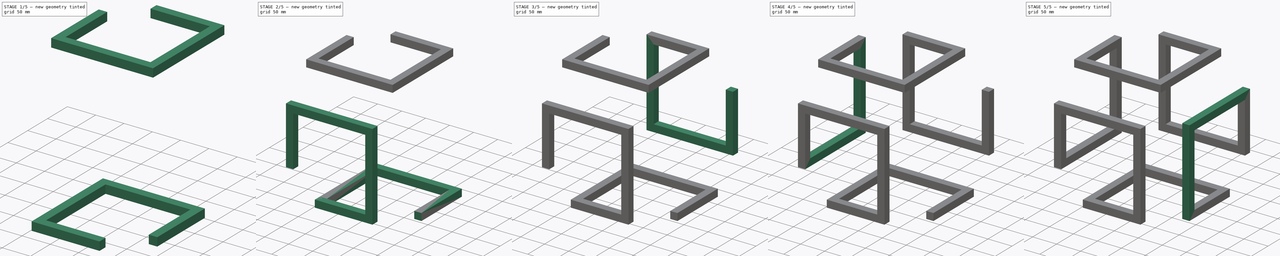
[diagram: build sequence overview — one tinted view per stage of 5, left to right]
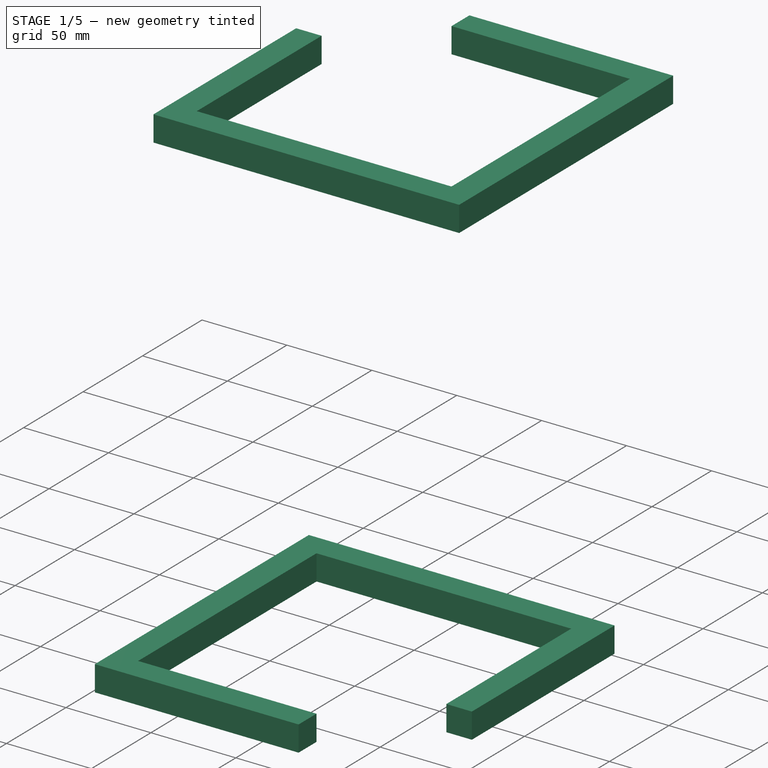
[diagram: stage 1 of 5 — iso view after this stage's code; geometry added in this stage tinted green]
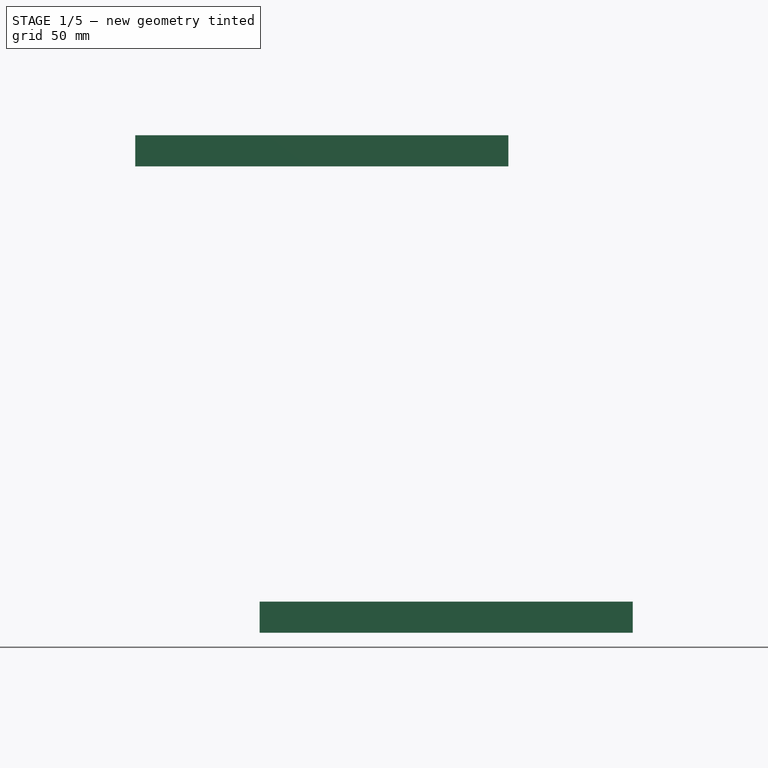
[diagram: stage 1 of 5 — front view after this stage's code; geometry added in this stage tinted green]
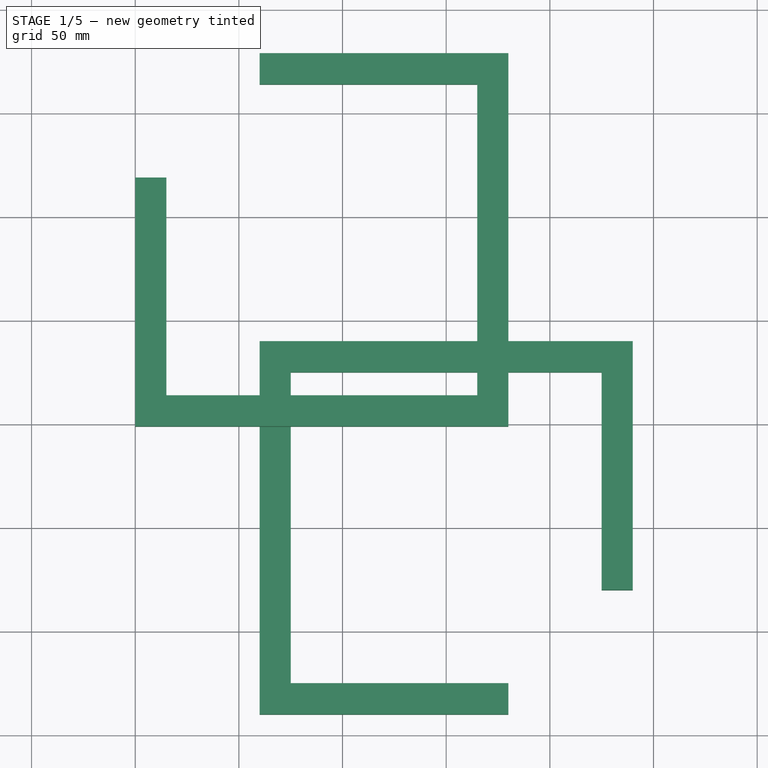
[diagram: stage 1 of 5 — top view after this stage's code; geometry added in this stage tinted green]
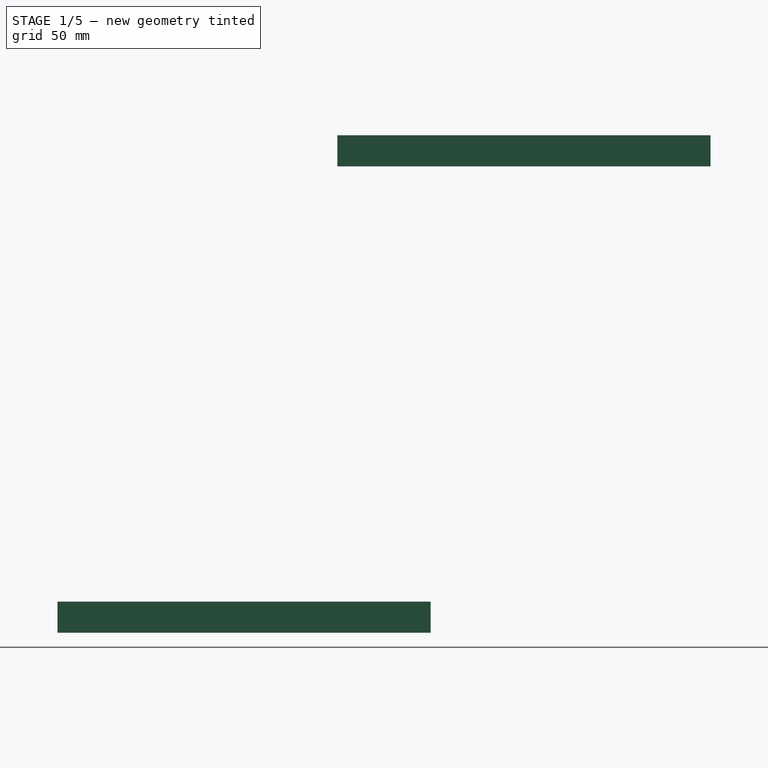
[diagram: stage 1 of 5 — right view after this stage's code; geometry added in this stage tinted green]
FCSTD DOCUMENT  (FreeCAD 0.20R29410 (Git))
Label: figureAssembly
License: All rights reserved
LicenseURL: http://en.wikipedia.org/wiki/All_rights_reserved
objects: Sketcher::SketchObject×7, PartDesign::Pad×6, Part::Compound×6, PartDesign::Body×6, Part::Fuse×5, PartDesign::ShapeBinder×1
note: 37 computed .brp shape members not serialized (recipe doc carries the construction recipe); baked Part::Feature solids carry a one-line shape summary decoded from their .brp

FEATURE [Sketcher::SketchObject] Sketch  label="tbaseSketch"
  FullyConstrained = true
  MapMode = 5
  Support = -> [XY_Plane]
  sketch-geometry (10):
    g0: LineSegment StartX=-90 StartY=-90 StartZ=0 EndX=-90 EndY=90 EndZ=0
    g1: LineSegment StartX=-90 StartY=90 StartZ=0 EndX=90 EndY=90 EndZ=0
    g2: LineSegment StartX=90 StartY=90 StartZ=0 EndX=90 EndY=-30 EndZ=0
    g3: LineSegment StartX=90 StartY=-30 StartZ=0 EndX=75 EndY=-30 EndZ=0
    g4: LineSegment StartX=75 StartY=-30 StartZ=0 EndX=75 EndY=75 EndZ=0
    g5: LineSegment StartX=75 StartY=75 StartZ=0 EndX=-75 EndY=75 EndZ=0
    g6: LineSegment StartX=-75 StartY=75 StartZ=0 EndX=-75 EndY=-75 EndZ=0
    g7: LineSegment StartX=-75 StartY=-75 StartZ=0 EndX=30 EndY=-75 EndZ=0
    g8: LineSegment StartX=30 StartY=-75 StartZ=0 EndX=30 EndY=-90 EndZ=0
    g9: LineSegment StartX=30 StartY=-90 StartZ=0 EndX=-90 EndY=-90 EndZ=0
  constraints (29):
    c: Coincident(g0,g1)
    c: Horizontal(g1)
    c: Coincident(g1,g2)
    c: Vertical(g2)
    c: Coincident(g2,g3)
    c: Coincident(g3,g4)
    c: Vertical(g4)
    c: Coincident(g4,g5)
    c: Horizontal(g5)
    c: Coincident(g5,g6)
    c: Vertical(g6)
    c: Coincident(g6,g7)
    c: Horizontal(g7)
    c: Coincident(g7,g8)
    c: Coincident(g8,g9)
    c: Coincident(g9,g0)
    c: Horizontal(g9)
    c: Distance(g1) = 180
    c: Distance(g0) = 180
    c: Perpendicular(g0,g1)
    c: DistanceY(g4,g1) = 15
    c: Distance(g3,g2) = 15
    c: Distance(g8) = 15
    c: Vertical(g8)
    c: Symmetric(g0,g1,g-1)
    c: Horizontal(g3)
    c: DistanceX(g0,g6) = 15
    c: Equal(g9,g2)
    c: Distance(g9) = 120
FEATURE [PartDesign::Pad] Pad  label="tbase"
  Direction = (0,0,1)
  Length = 15
  Length2 = 10
  Profile = -> Sketch
  ReferenceAxis = -> Sketch [N_Axis]
  Refine = true
  Type = 0
FEATURE [Sketcher::SketchObject] Sketch008  label="top sketch"
  AttachmentOffset = pos=(0,0,0) rot=(0,1,0;3.14159rad)
  FullyConstrained = true
  MapMode = 5
  Placement = pos=(0,0,0) rot=(0,1,0;3.14159rad)
  Support = -> [XY_Plane015]
  sketch-geometry (10):
    g0: LineSegment StartX=-90 StartY=-90 StartZ=0 EndX=-90 EndY=90 EndZ=0
    g1: LineSegment StartX=-90 StartY=90 StartZ=0 EndX=90 EndY=90 EndZ=0
    g2: LineSegment StartX=90 StartY=90 StartZ=0 EndX=90 EndY=-30 EndZ=0
    g3: LineSegment StartX=90 StartY=-30 StartZ=0 EndX=75 EndY=-30 EndZ=0
    g4: LineSegment StartX=75 StartY=-30 StartZ=0 EndX=75 EndY=75 EndZ=0
    g5: LineSegment StartX=75 StartY=75 StartZ=0 EndX=-75 EndY=75 EndZ=0
    g6: LineSegment StartX=-75 StartY=75 StartZ=0 EndX=-75 EndY=-75 EndZ=0
    g7: LineSegment StartX=-75 StartY=-75 StartZ=0 EndX=30 EndY=-75 EndZ=0
    g8: LineSegment StartX=30 StartY=-75 StartZ=0 EndX=30 EndY=-90 EndZ=0
    g9: LineSegment StartX=30 StartY=-90 StartZ=0 EndX=-90 EndY=-90 EndZ=0
  constraints (29):
    c: Coincident(g0,g1)
    c: Horizontal(g1)
    c: Coincident(g1,g2)
    c: Vertical(g2)
    c: Coincident(g2,g3)
    c: Coincident(g3,g4)
    c: Vertical(g4)
    c: Coincident(g4,g5)
    c: Horizontal(g5)
    c: Coincident(g5,g6)
    c: Vertical(g6)
    c: Coincident(g6,g7)
    c: Horizontal(g7)
    c: Coincident(g7,g8)
    c: Coincident(g8,g9)
    c: Coincident(g9,g0)
    c: Horizontal(g9)
    c: Distance(g1) = 180
    c: Distance(g0) = 180
    c: Perpendicular(g0,g1)
    c: DistanceY(g4,g1) = 15
    c: Distance(g3,g2) = 15
    c: Distance(g8) = 15
    c: Vertical(g8)
    c: Symmetric(g0,g1,g-1)
    c: Horizontal(g3)
    c: DistanceX(g0,g6) = 15
    c: Equal(g9,g2)
    c: Distance(g9) = 120
FEATURE [PartDesign::Pad] Pad003
  Direction = (1e-16,0,-1)
  Length = 15
  Length2 = 10
  Profile = -> Sketch008
  ReferenceAxis = -> Sketch008 [N_Axis]
  Refine = true
  Type = 0
FEATURE [PartDesign::Body] Body003
  Group = -> [Sketch008,Pad003]
  Origin = -> Origin003
  Tip = -> Pad003
FEATURE [Part::Compound] Compound003  label="top"
  Links = -> [Body003]
  Placement = pos=(-60,135,240) rot=(0,0,-1;1.5708rad)
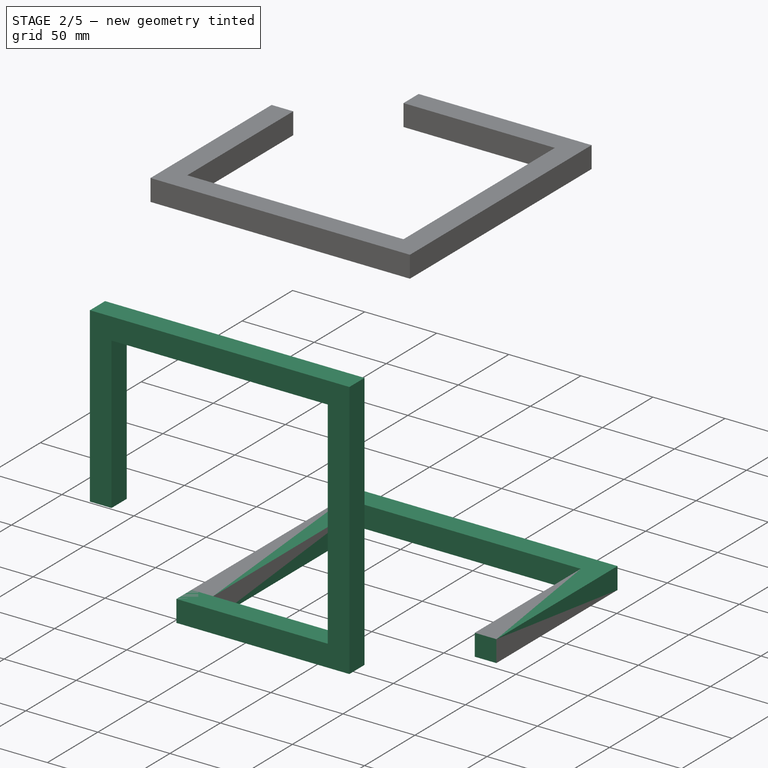
[diagram: stage 2 of 5 — iso view after this stage's code; geometry added in this stage tinted green]
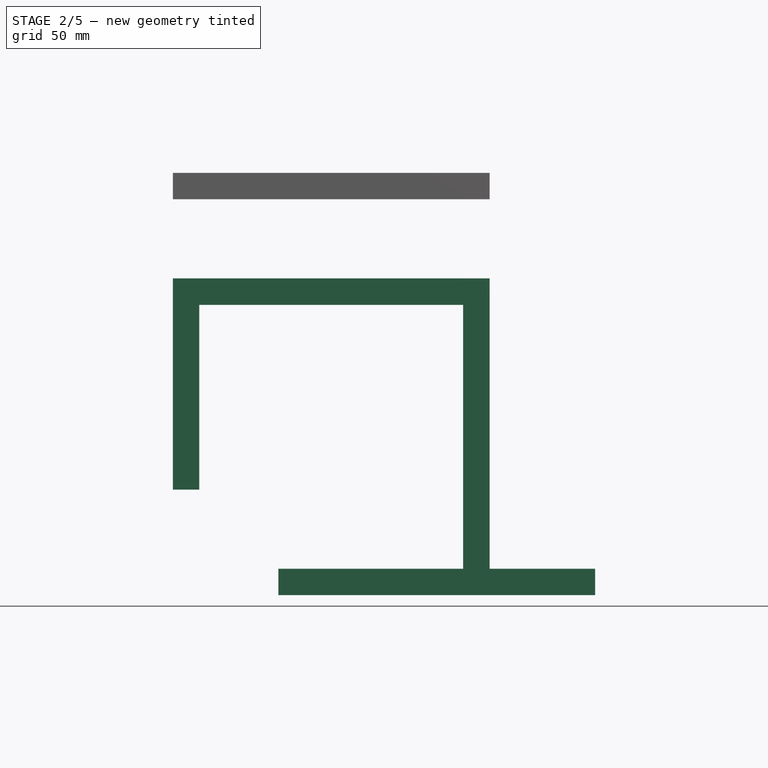
[diagram: stage 2 of 5 — front view after this stage's code; geometry added in this stage tinted green]
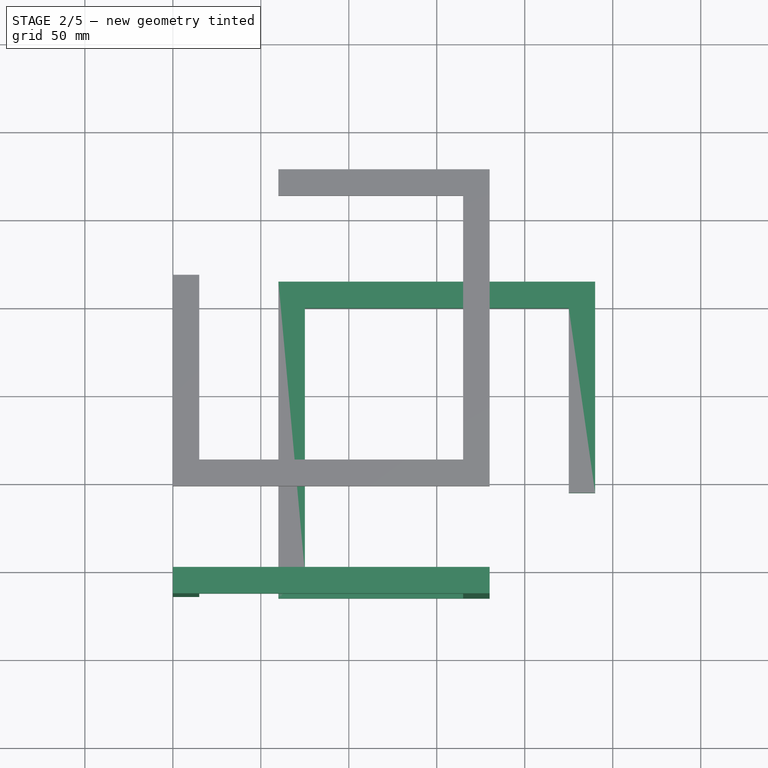
[diagram: stage 2 of 5 — top view after this stage's code; geometry added in this stage tinted green]
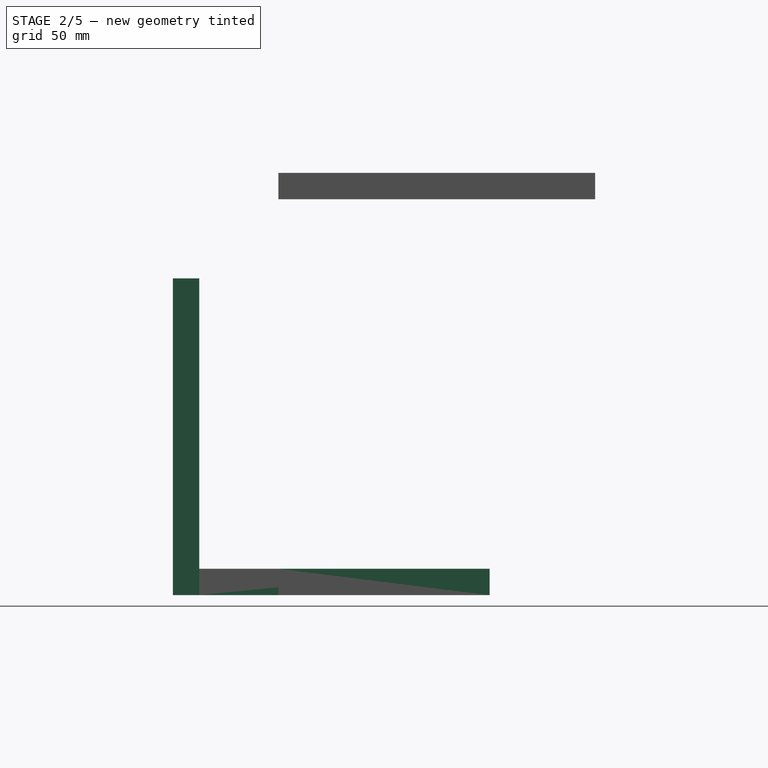
[diagram: stage 2 of 5 — right view after this stage's code; geometry added in this stage tinted green]
FEATURE [Part::Compound] Compound  label="base"
  Links = -> [Pad]
  Placement = pos=(0,75,0) rot=(0,0,1;0rad)
FEATURE [PartDesign::ShapeBinder] CopyCompound
  TraceSupport = false
FEATURE [PartDesign::Body] Body
  Group = -> [Sketch,Pad,CopyCompound]
  Origin = -> Origin
  Tip = -> Pad
FEATURE [Sketcher::SketchObject] Sketch006  label="frontsketch"
  AttachmentOffset = pos=(0,0,0) rot=(0,0,1;-1.5708rad)
  FullyConstrained = true
  MapMode = 5
  Placement = pos=(0,0,0) rot=(0,0,1;4.71239rad)
  Support = -> [XY_Plane007]
  sketch-geometry (10):
    g0: LineSegment StartX=-90 StartY=-90 StartZ=0 EndX=-90 EndY=90 EndZ=0
    g1: LineSegment StartX=-90 StartY=90 StartZ=0 EndX=90 EndY=90 EndZ=0
    g2: LineSegment StartX=90 StartY=90 StartZ=0 EndX=90 EndY=-30 EndZ=0
    g3: LineSegment StartX=90 StartY=-30 StartZ=0 EndX=75 EndY=-30 EndZ=0
    g4: LineSegment StartX=75 StartY=-30 StartZ=0 EndX=75 EndY=75 EndZ=0
    g5: LineSegment StartX=75 StartY=75 StartZ=0 EndX=-75 EndY=75 EndZ=0
    g6: LineSegment StartX=-75 StartY=75 StartZ=0 EndX=-75 EndY=-75 EndZ=0
    g7: LineSegment StartX=-75 StartY=-75 StartZ=0 EndX=30 EndY=-75 EndZ=0
    g8: LineSegment StartX=30 StartY=-75 StartZ=0 EndX=30 EndY=-90 EndZ=0
    g9: LineSegment StartX=30 StartY=-90 StartZ=0 EndX=-90 EndY=-90 EndZ=0
  constraints (29):
    c: Coincident(g0,g1)
    c: Horizontal(g1)
    c: Coincident(g1,g2)
    c: Vertical(g2)
    c: Coincident(g2,g3)
    c: Coincident(g3,g4)
    c: Vertical(g4)
    c: Coincident(g4,g5)
    c: Horizontal(g5)
    c: Coincident(g5,g6)
    c: Vertical(g6)
    c: Coincident(g6,g7)
    c: Horizontal(g7)
    c: Coincident(g7,g8)
    c: Coincident(g8,g9)
    c: Coincident(g9,g0)
    c: Horizontal(g9)
    c: Distance(g1) = 180
    c: Distance(g0) = 180
    c: Perpendicular(g0,g1)
    c: DistanceY(g4,g1) = 15
    c: Distance(g3,g2) = 15
    c: Distance(g8) = 15
    c: Vertical(g8)
    c: Symmetric(g0,g1,g-1)
    c: Horizontal(g3)
    c: DistanceX(g0,g6) = 15
    c: Equal(g9,g2)
    c: Distance(g9) = 120
FEATURE [PartDesign::Pad] Pad001
  Direction = (0,0,1)
  Length = 15
  Length2 = 10
  Profile = -> Sketch006
  ReferenceAxis = -> Sketch006 [N_Axis]
  Refine = true
  Type = 0
FEATURE [PartDesign::Body] Body001  label="frontB"
  Group = -> [Sketch006,Pad001]
  Origin = -> Origin001
  Placement = pos=(0,0,0) rot=(1,0,0;1.5708rad)
  Tip = -> Pad001
FEATURE [Part::Compound] Compound001  label="front"
  Links = -> [Body001]
  Placement = pos=(-60,0,90) rot=(0,1,0;0rad)
FEATURE [Part::Fuse] Fusion
  Base = -> Compound
  Refine = true
  Tool = -> Compound003
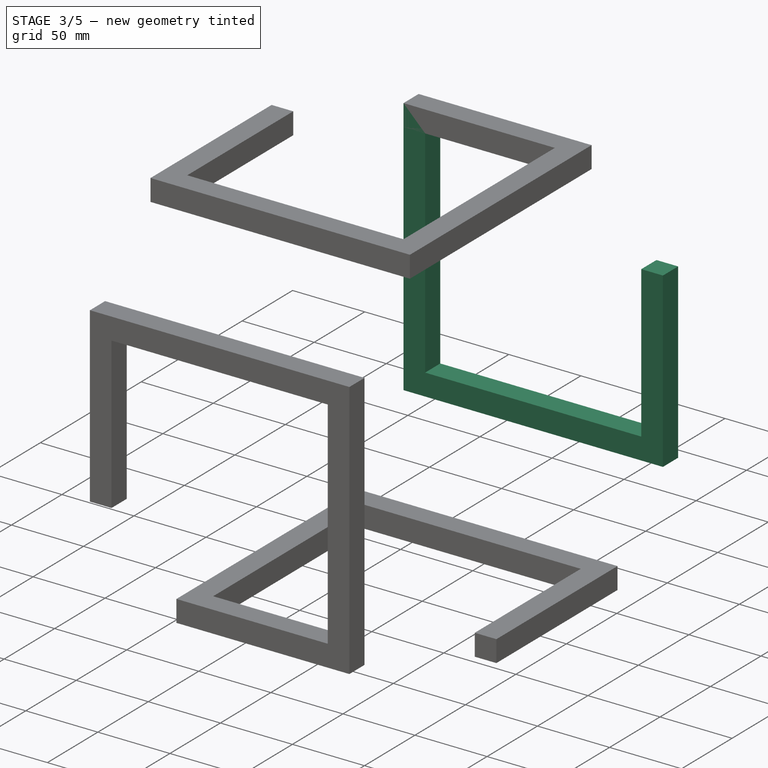
[diagram: stage 3 of 5 — iso view after this stage's code; geometry added in this stage tinted green]
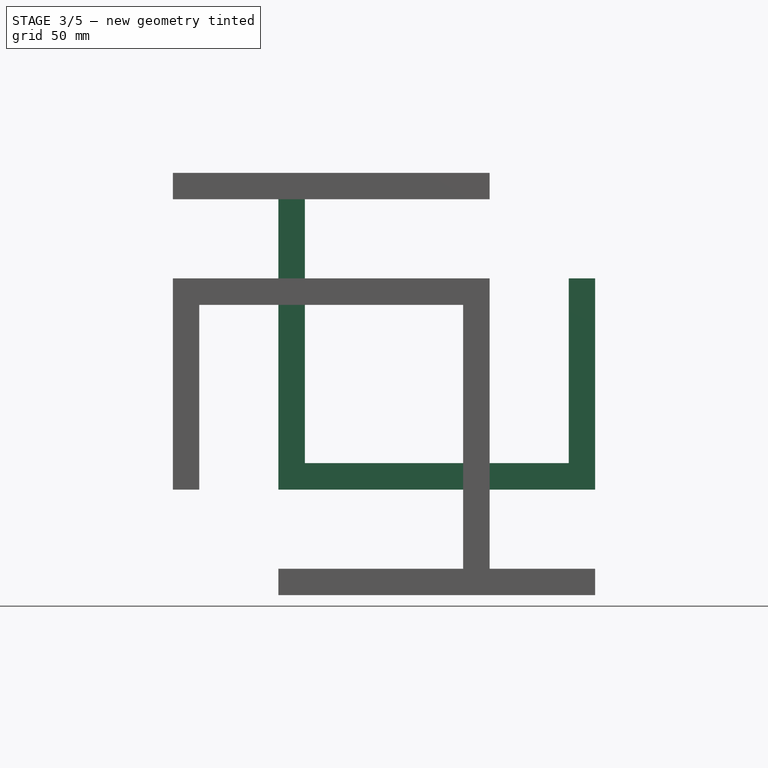
[diagram: stage 3 of 5 — front view after this stage's code; geometry added in this stage tinted green]
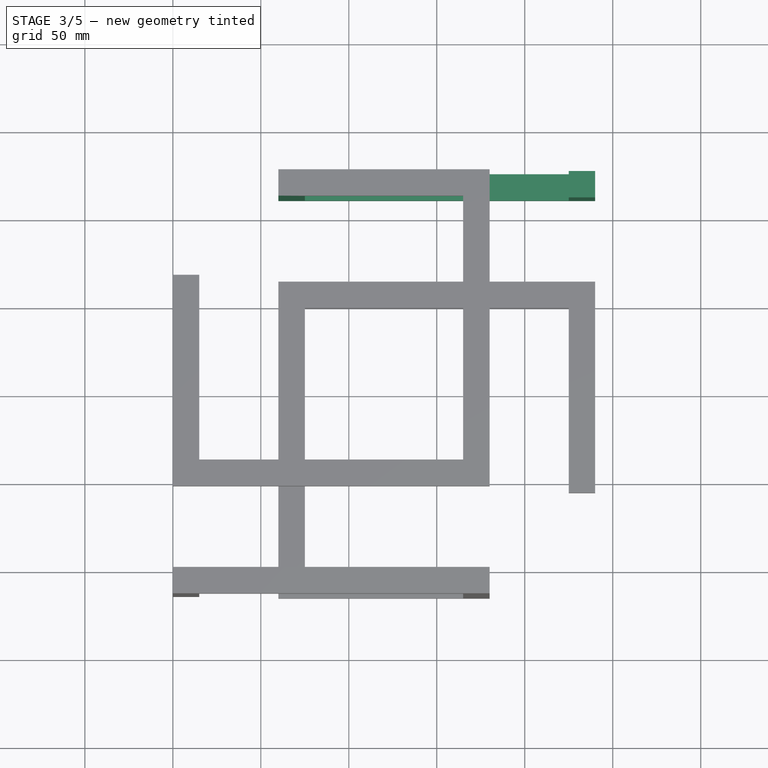
[diagram: stage 3 of 5 — top view after this stage's code; geometry added in this stage tinted green]
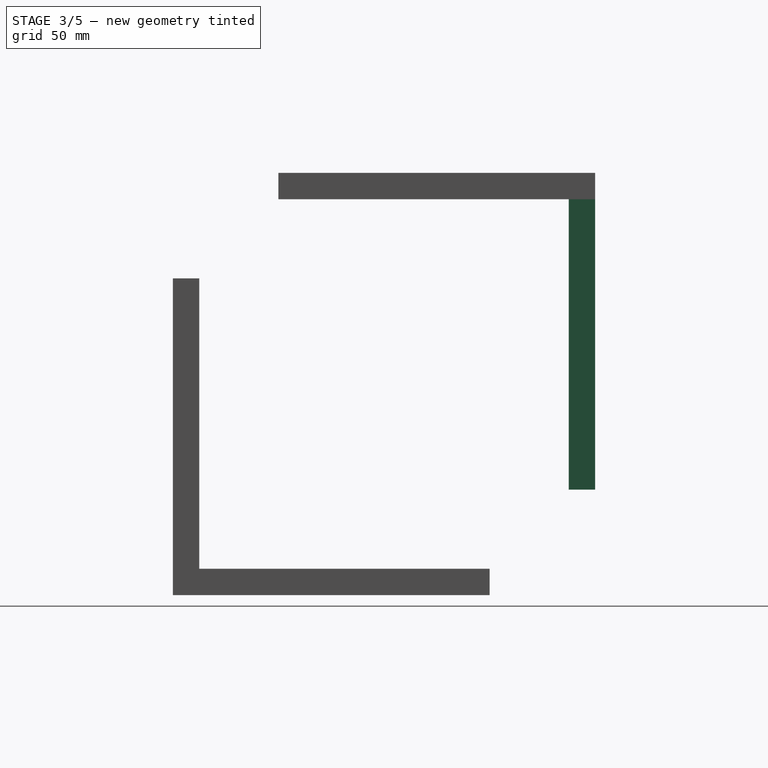
[diagram: stage 3 of 5 — right view after this stage's code; geometry added in this stage tinted green]
FEATURE [Sketcher::SketchObject] Sketch009  label="tbaseSketch001"
  FullyConstrained = true
  MapMode = 5
  Support = -> [XY_Plane017]
  sketch-geometry (8):
    g0: LineSegment StartX=-90 StartY=97.5 StartZ=0 EndX=90 EndY=97.5 EndZ=0
    g1: LineSegment StartX=90 StartY=97.5 StartZ=0 EndX=90 EndY=-37.5 EndZ=0
    g2: LineSegment StartX=90 StartY=-37.5 StartZ=0 EndX=75 EndY=-37.5 EndZ=0
    g3: LineSegment StartX=75 StartY=-37.5 StartZ=0 EndX=75 EndY=82.5 EndZ=0
    g4: LineSegment StartX=75 StartY=82.5 StartZ=0 EndX=-75 EndY=82.5 EndZ=0
    g5: LineSegment StartX=-75 StartY=82.5 StartZ=0 EndX=-75 EndY=-82.5 EndZ=0
    g6: LineSegment StartX=-90 StartY=97.5 StartZ=0 EndX=-90 EndY=-82.5 EndZ=0
    g7: LineSegment StartX=-90 StartY=-82.5 StartZ=0 EndX=-75 EndY=-82.5 EndZ=0
  constraints (23):
    c: Horizontal(g0)
    c: Coincident(g0,g1)
    c: Vertical(g1)
    c: Coincident(g1,g2)
    c: Coincident(g2,g3)
    c: Vertical(g3)
    c: Coincident(g3,g4)
    c: Horizontal(g4)
    c: Coincident(g4,g5)
    c: Vertical(g5)
    c: Distance(g0) = 180
    c: DistanceY(g3,g0) = 15
    c: Distance(g2,g1) = 15
    c: Horizontal(g2)
    c: Coincident(g6,g0)
    c: Vertical(g6)
    c: Coincident(g7,g6)
    c: Coincident(g7,g5)
    c: Horizontal(g7)
    c: Distance(g7) = 15
    c: Distance(g6) = 180
    c: Symmetric(g3,g5,g-1)
    c: Distance(g3) = 120
FEATURE [Sketcher::SketchObject] Sketch010  label="tbaseSketch002"
  FullyConstrained = true
  MapMode = 5
  Support = -> [XY_Plane018]
  sketch-geometry (10):
    g0: LineSegment StartX=-90 StartY=-90 StartZ=0 EndX=-90 EndY=90 EndZ=0
    g1: LineSegment StartX=-90 StartY=90 StartZ=0 EndX=90 EndY=90 EndZ=0
    g2: LineSegment StartX=90 StartY=90 StartZ=0 EndX=90 EndY=-30 EndZ=0
    g3: LineSegment StartX=90 StartY=-30 StartZ=0 EndX=75 EndY=-30 EndZ=0
    g4: LineSegment StartX=75 StartY=-30 StartZ=0 EndX=75 EndY=75 EndZ=0
    g5: LineSegment StartX=75 StartY=75 StartZ=0 EndX=-75 EndY=75 EndZ=0
    g6: LineSegment StartX=-75 StartY=75 StartZ=0 EndX=-75 EndY=-75 EndZ=0
    g7: LineSegment StartX=-75 StartY=-75 StartZ=0 EndX=30 EndY=-75 EndZ=0
    g8: LineSegment StartX=30 StartY=-75 StartZ=0 EndX=30 EndY=-90 EndZ=0
    g9: LineSegment StartX=30 StartY=-90 StartZ=0 EndX=-90 EndY=-90 EndZ=0
  constraints (29):
    c: Coincident(g0,g1)
    c: Horizontal(g1)
    c: Coincident(g1,g2)
    c: Vertical(g2)
    c: Coincident(g2,g3)
    c: Coincident(g3,g4)
    c: Vertical(g4)
    c: Coincident(g4,g5)
    c: Horizontal(g5)
    c: Coincident(g5,g6)
    c: Vertical(g6)
    c: Coincident(g6,g7)
    c: Horizontal(g7)
    c: Coincident(g7,g8)
    c: Coincident(g8,g9)
    c: Coincident(g9,g0)
    c: Horizontal(g9)
    c: Distance(g1) = 180
    c: Distance(g0) = 180
    c: Perpendicular(g0,g1)
    c: DistanceY(g4,g1) = 15
    c: Distance(g3,g2) = 15
    c: Distance(g8) = 15
    c: Vertical(g8)
    c: Symmetric(g0,g1,g-1)
    c: Horizontal(g3)
    c: DistanceX(g0,g6) = 15
    c: Equal(g9,g2)
    c: Distance(g9) = 120
FEATURE [PartDesign::Pad] Pad004
  Direction = (0,0,1)
  Length = 15
  Length2 = 10
  Profile = -> Sketch010
  ReferenceAxis = -> Sketch010 [N_Axis]
  Refine = true
  Type = 0
FEATURE [PartDesign::Body] Body004
  Group = -> [Sketch010,Pad004]
  Origin = -> Origin004
  Tip = -> Pad004
FEATURE [Part::Compound] Compound004  label="back"
  Links = -> [Body004]
  Placement = pos=(0,210,150) rot=(-1,0,0;1.5708rad)
FEATURE [Part::Fuse] Fusion002
  Base = -> Fusion
  Refine = true
  Tool = -> Compound001
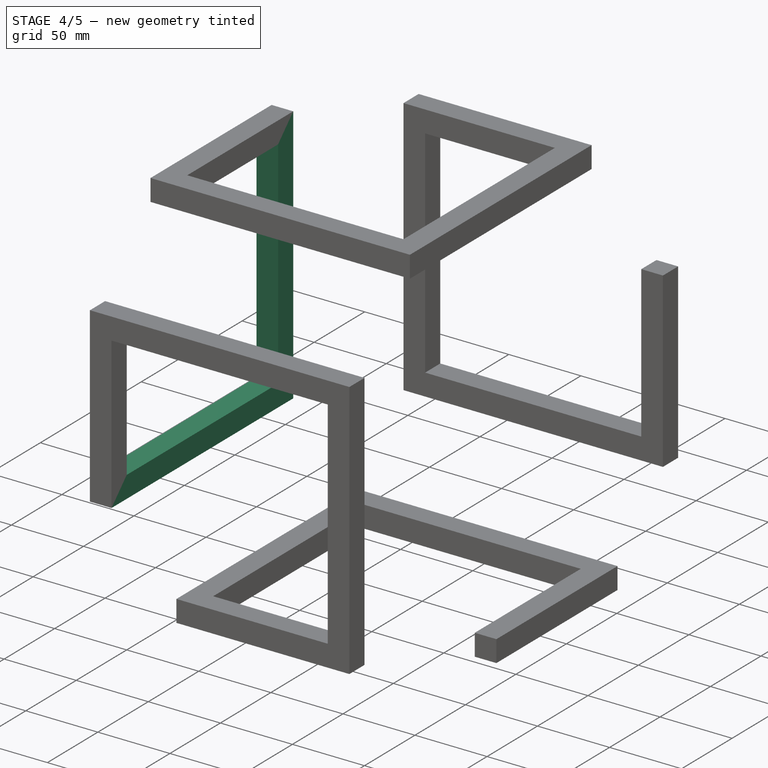
[diagram: stage 4 of 5 — iso view after this stage's code; geometry added in this stage tinted green]
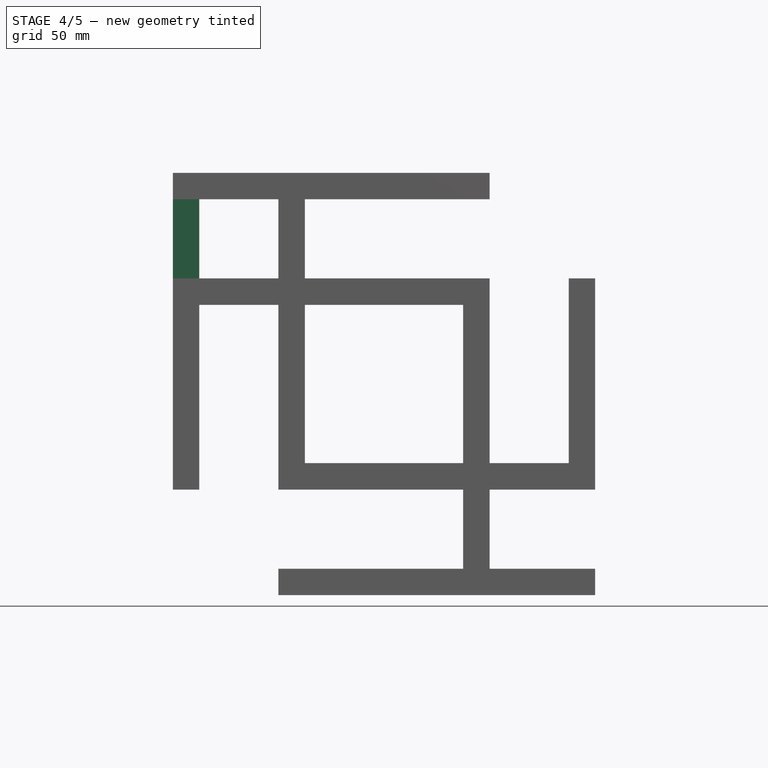
[diagram: stage 4 of 5 — front view after this stage's code; geometry added in this stage tinted green]
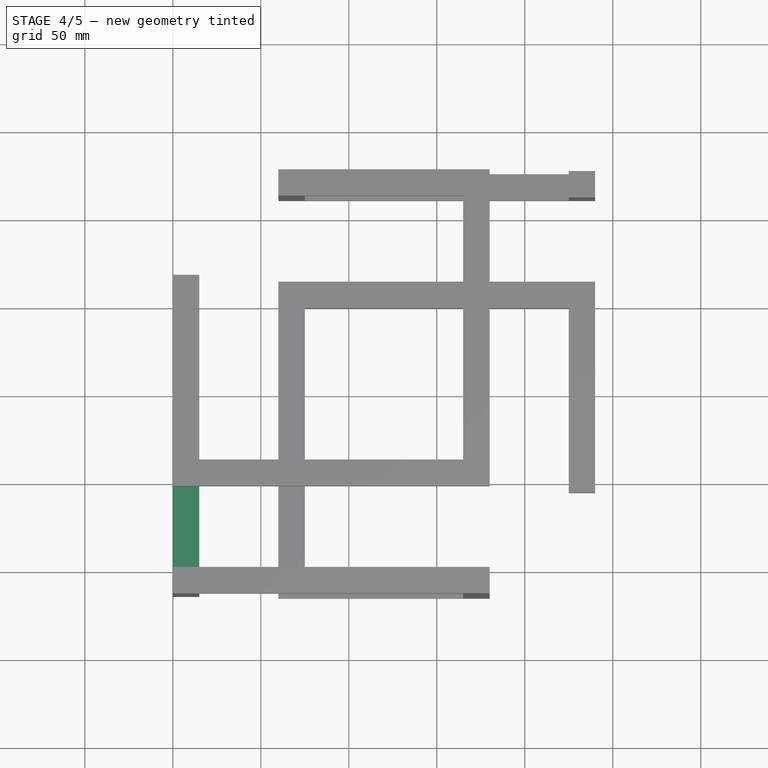
[diagram: stage 4 of 5 — top view after this stage's code; geometry added in this stage tinted green]
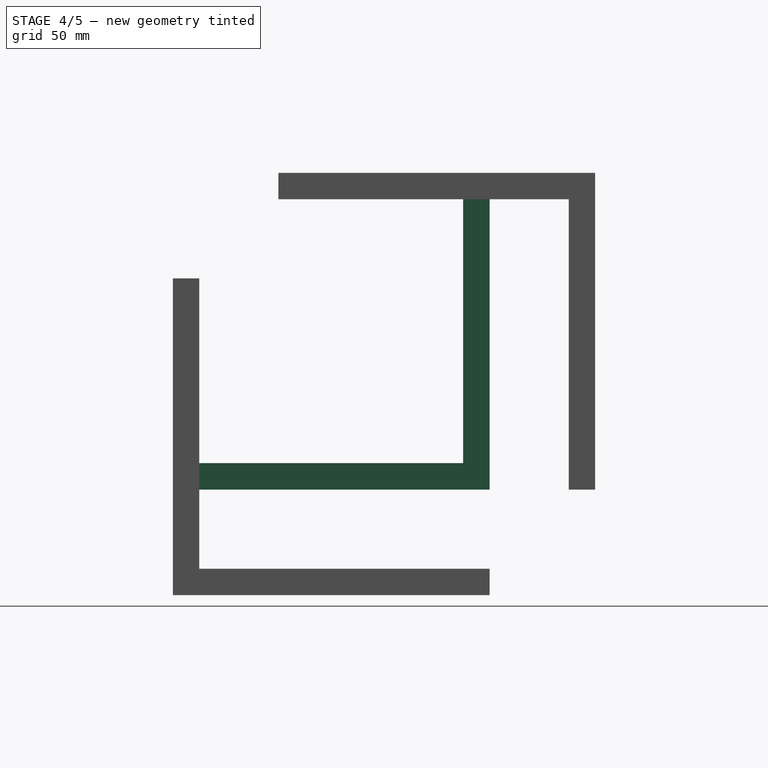
[diagram: stage 4 of 5 — right view after this stage's code; geometry added in this stage tinted green]
FEATURE [Sketcher::SketchObject] Sketch007  label="leftsketch"
  FullyConstrained = true
  MapMode = 5
  Support = -> [XY_Plane010]
  sketch-geometry (10):
    g0: LineSegment StartX=-90 StartY=-90 StartZ=0 EndX=-90 EndY=90 EndZ=0
    g1: LineSegment StartX=-90 StartY=90 StartZ=0 EndX=90 EndY=90 EndZ=0
    g2: LineSegment StartX=90 StartY=90 StartZ=0 EndX=90 EndY=-30 EndZ=0
    g3: LineSegment StartX=90 StartY=-30 StartZ=0 EndX=75 EndY=-30 EndZ=0
    g4: LineSegment StartX=75 StartY=-30 StartZ=0 EndX=75 EndY=75 EndZ=0
    g5: LineSegment StartX=75 StartY=75 StartZ=0 EndX=-75 EndY=75 EndZ=0
    g6: LineSegment StartX=-75 StartY=75 StartZ=0 EndX=-75 EndY=-75 EndZ=0
    g7: LineSegment StartX=-75 StartY=-75 StartZ=0 EndX=30 EndY=-75 EndZ=0
    g8: LineSegment StartX=30 StartY=-75 StartZ=0 EndX=30 EndY=-90 EndZ=0
    g9: LineSegment StartX=30 StartY=-90 StartZ=0 EndX=-90 EndY=-90 EndZ=0
  constraints (29):
    c: Coincident(g0,g1)
    c: Horizontal(g1)
    c: Coincident(g1,g2)
    c: Vertical(g2)
    c: Coincident(g2,g3)
    c: Coincident(g3,g4)
    c: Vertical(g4)
    c: Coincident(g4,g5)
    c: Horizontal(g5)
    c: Coincident(g5,g6)
    c: Vertical(g6)
    c: Coincident(g6,g7)
    c: Horizontal(g7)
    c: Coincident(g7,g8)
    c: Coincident(g8,g9)
    c: Coincident(g9,g0)
    c: Horizontal(g9)
    c: Distance(g1) = 180
    c: Distance(g0) = 180
    c: Perpendicular(g0,g1)
    c: DistanceY(g4,g1) = 15
    c: Distance(g3,g2) = 15
    c: Distance(g8) = 15
    c: Vertical(g8)
    c: Symmetric(g0,g1,g-1)
    c: Horizontal(g3)
    c: DistanceX(g0,g6) = 15
    c: Equal(g9,g2)
    c: Distance(g9) = 120
FEATURE [PartDesign::Pad] Pad002
  Direction = (0,0,1)
  Length = 15
  Length2 = 10
  Profile = -> Sketch007
  ReferenceAxis = -> Sketch007 [N_Axis]
  Refine = true
  Type = 0
FEATURE [PartDesign::Body] Body002  label="left-t"
  Group = -> [Sketch007,Pad002]
  Origin = -> Origin002
  Tip = -> Pad002
FEATURE [Part::Compound] Compound002  label="left"
  Links = -> [Body002]
  Placement = pos=(-135,75,150) rot=(0,-1,0;1.5708rad)
FEATURE [Part::Fuse] Fusion003
  Base = -> Fusion002
  Refine = true
  Tool = -> Compound004
FEATURE [Part::Fuse] Fusion004
  Base = -> Fusion003
  Refine = true
  Tool = -> Compound002
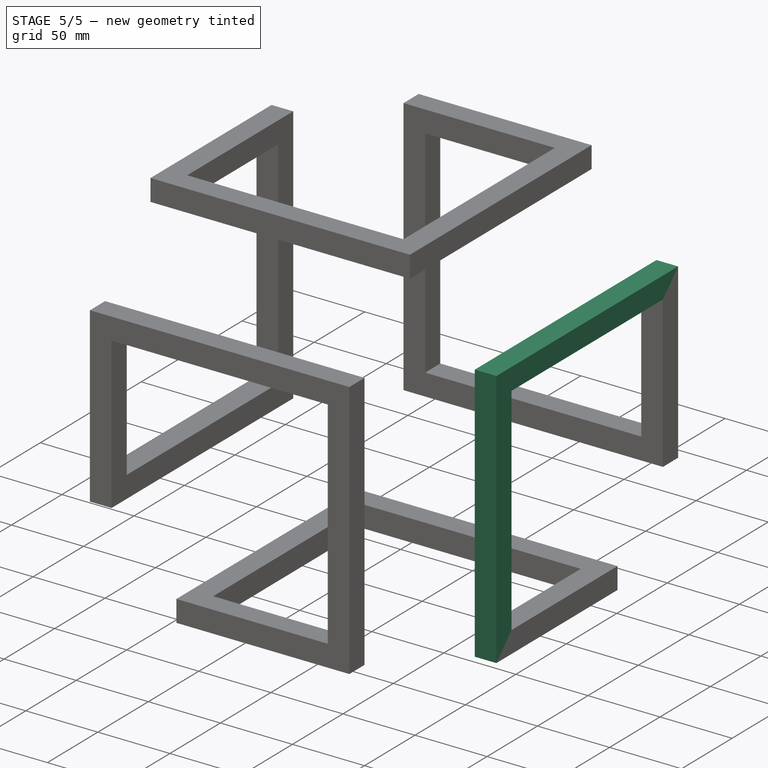
[diagram: stage 5 of 5 — iso view after this stage's code; geometry added in this stage tinted green]
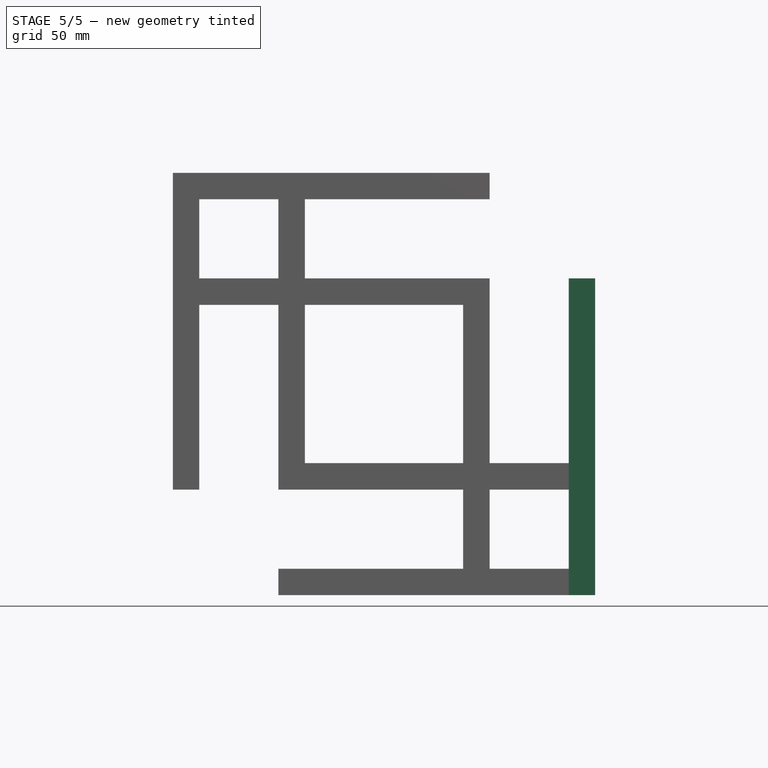
[diagram: stage 5 of 5 — front view after this stage's code; geometry added in this stage tinted green]
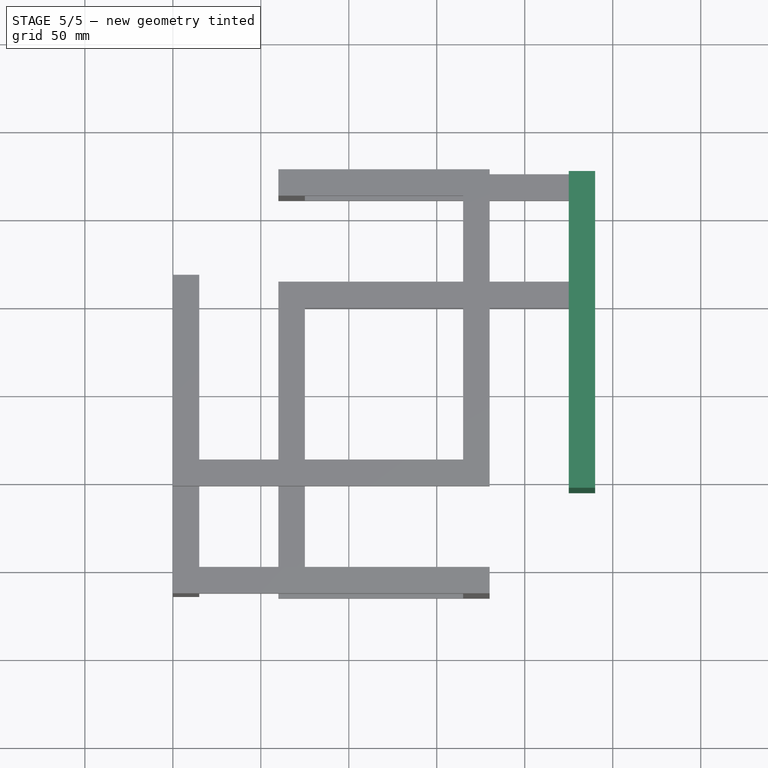
[diagram: stage 5 of 5 — top view after this stage's code; geometry added in this stage tinted green]
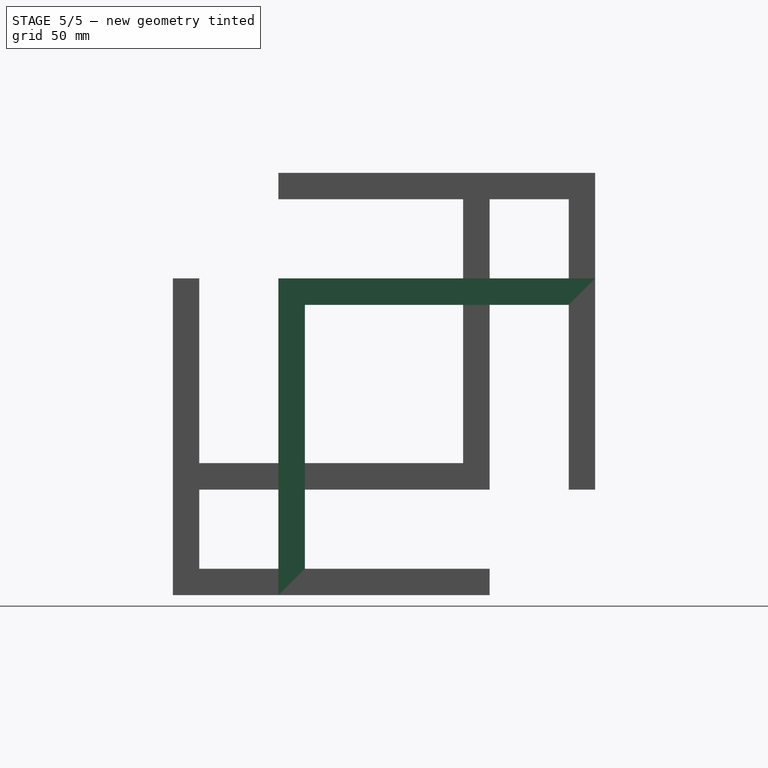
[diagram: stage 5 of 5 — right view after this stage's code; geometry added in this stage tinted green]
FEATURE [Sketcher::SketchObject] Sketch011  label="rightsketch"
  AttachmentOffset = pos=(0,0,0) rot=(0,0,1;1.5708rad)
  FullyConstrained = true
  MapMode = 5
  Placement = pos=(0,0,0) rot=(0,0,1;1.5708rad)
  Support = -> [XY_Plane019]
  sketch-geometry (10):
    g0: LineSegment StartX=-90 StartY=-90 StartZ=0 EndX=-90 EndY=90 EndZ=0
    g1: LineSegment StartX=-90 StartY=90 StartZ=0 EndX=90 EndY=90 EndZ=0
    g2: LineSegment StartX=90 StartY=90 StartZ=0 EndX=90 EndY=-30 EndZ=0
    g3: LineSegment StartX=90 StartY=-30 StartZ=0 EndX=75 EndY=-30 EndZ=0
    g4: LineSegment StartX=75 StartY=-30 StartZ=0 EndX=75 EndY=75 EndZ=0
    g5: LineSegment StartX=75 StartY=75 StartZ=0 EndX=-75 EndY=75 EndZ=0
    g6: LineSegment StartX=-75 StartY=75 StartZ=0 EndX=-75 EndY=-75 EndZ=0
    g7: LineSegment StartX=-75 StartY=-75 StartZ=0 EndX=30 EndY=-75 EndZ=0
    g8: LineSegment StartX=30 StartY=-75 StartZ=0 EndX=30 EndY=-90 EndZ=0
    g9: LineSegment StartX=30 StartY=-90 StartZ=0 EndX=-90 EndY=-90 EndZ=0
  constraints (29):
    c: Coincident(g0,g1)
    c: Horizontal(g1)
    c: Coincident(g1,g2)
    c: Vertical(g2)
    c: Coincident(g2,g3)
    c: Coincident(g3,g4)
    c: Vertical(g4)
    c: Coincident(g4,g5)
    c: Horizontal(g5)
    c: Coincident(g5,g6)
    c: Vertical(g6)
    c: Coincident(g6,g7)
    c: Horizontal(g7)
    c: Coincident(g7,g8)
    c: Coincident(g8,g9)
    c: Coincident(g9,g0)
    c: Horizontal(g9)
    c: Distance(g1) = 180
    c: Distance(g0) = 180
    c: Perpendicular(g0,g1)
    c: DistanceY(g4,g1) = 15
    c: Distance(g3,g2) = 15
    c: Distance(g8) = 15
    c: Vertical(g8)
    c: Symmetric(g0,g1,g-1)
    c: Horizontal(g3)
    c: DistanceX(g0,g6) = 15
    c: Equal(g9,g2)
    c: Distance(g9) = 120
FEATURE [PartDesign::Pad] Pad005
  Direction = (0,0,1)
  Length = 15
  Length2 = 10
  Profile = -> Sketch011
  ReferenceAxis = -> Sketch011 [N_Axis]
  Refine = true
  Type = 0
FEATURE [PartDesign::Body] Body005
  Group = -> [Sketch011,Pad005]
  Origin = -> Origin005
  Tip = -> Pad005
FEATURE [Part::Compound] Compound005  label="right"
  Links = -> [Body005]
  Placement = pos=(75,135,90) rot=(0,1,0;1.5708rad)
FEATURE [Part::Fuse] Fusion005  label="SGI"
  Base = -> Fusion004
  Refine = true
  Tool = -> Compound005
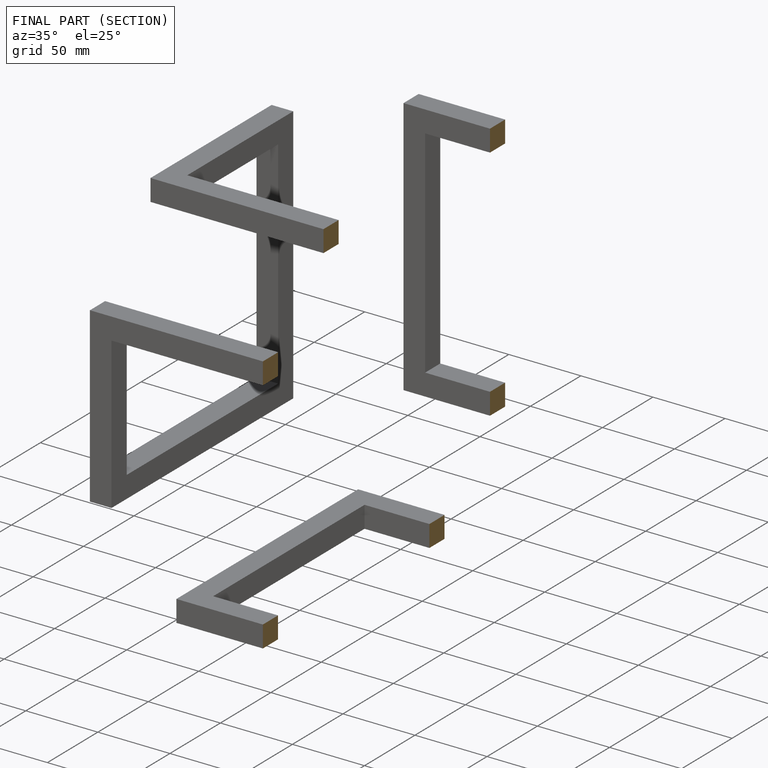
[diagram: finished part — half-section view (interior)]
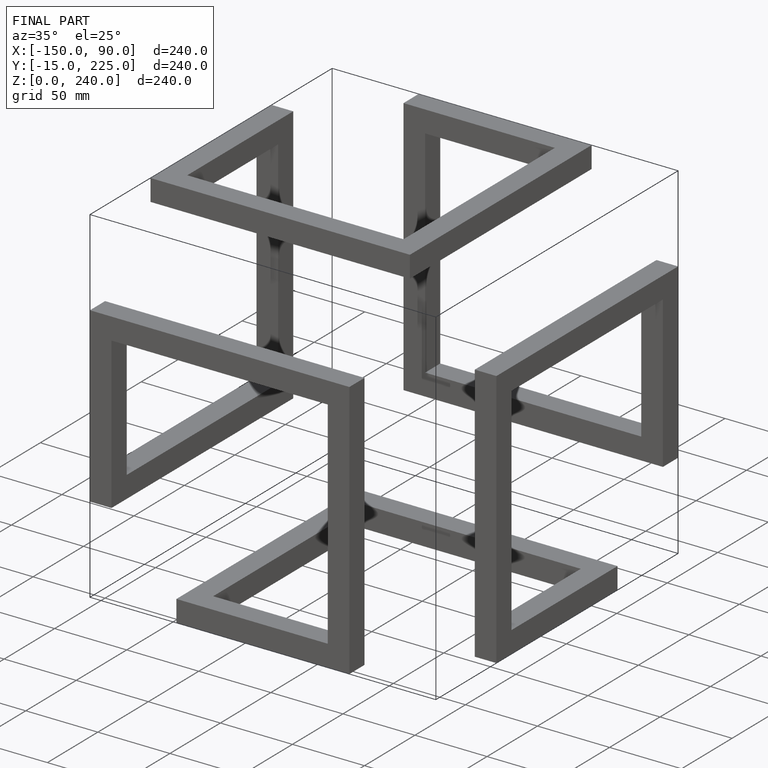
[diagram: finished part — iso view with bounding-box wireframe]
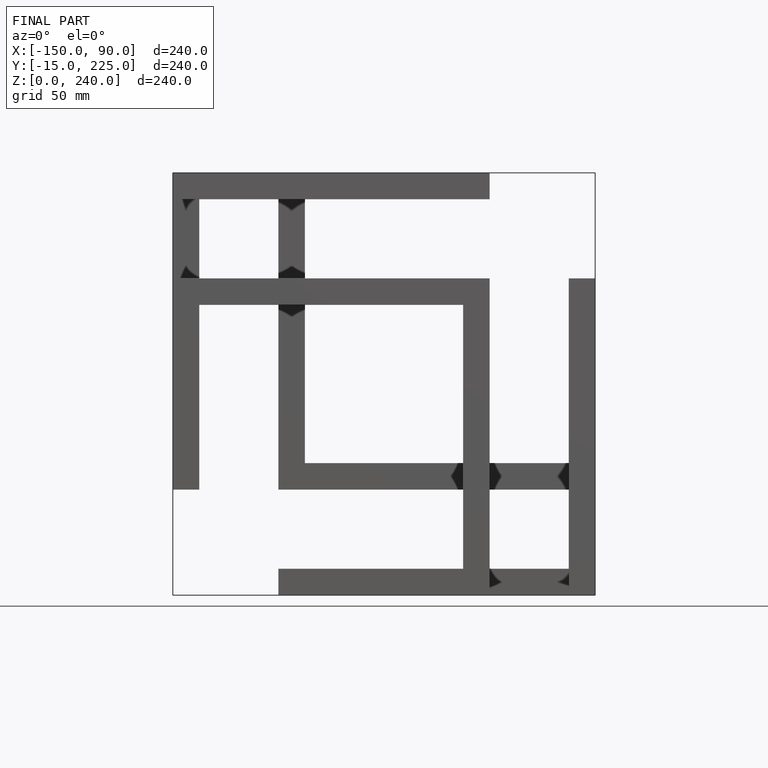
[diagram: finished part — front view with bounding-box wireframe]
